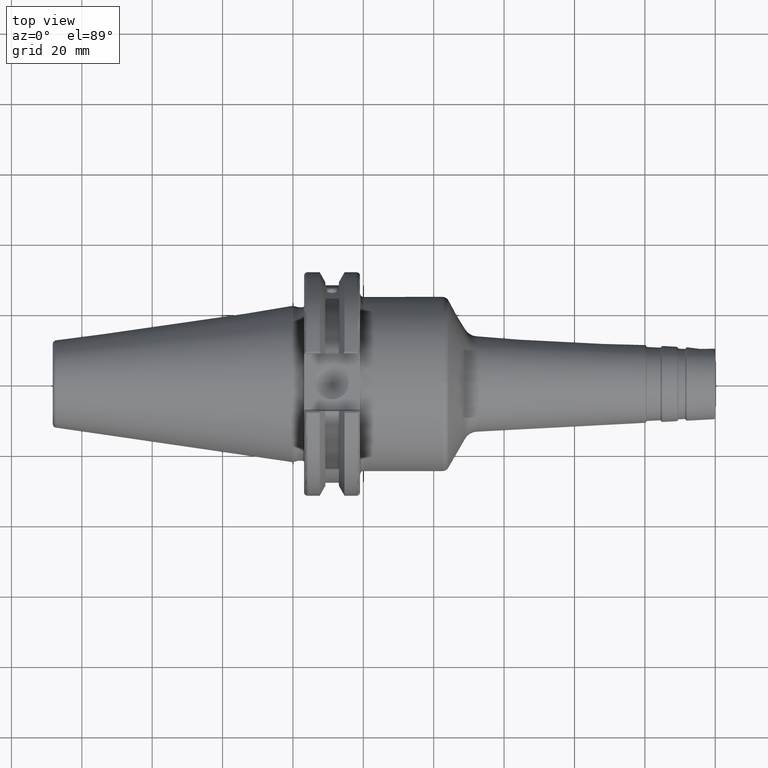
[diagram: clean part render]
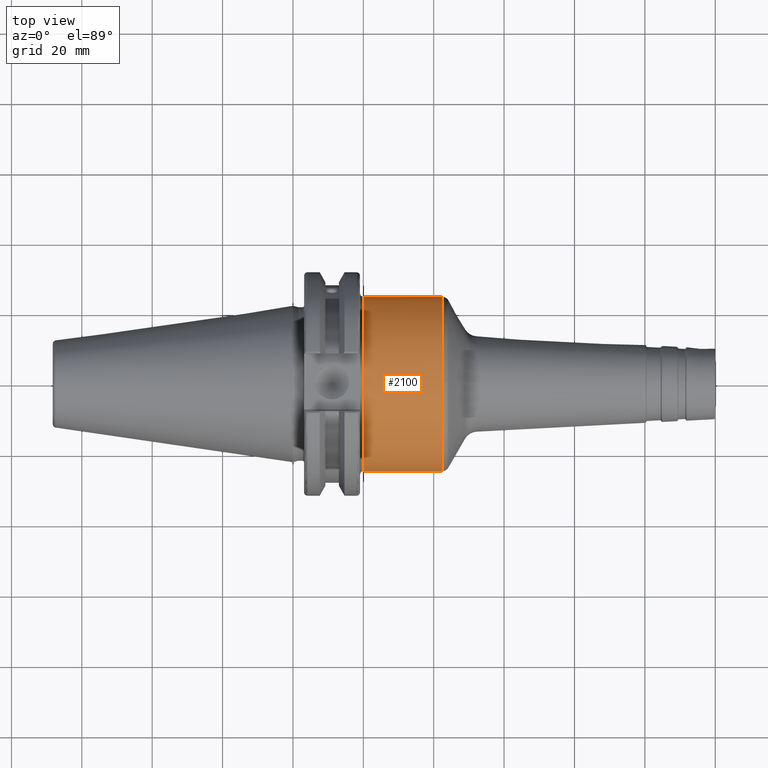
[diagram: same view with one face highlighted and labeled with its STEP entity id]
A machine part, top view. The second image highlights one B-rep face of the part: STEP entity #2100.
In plain terms, the highlighted cylindrical surface (bore or boss wall) has radius 24.75 mm, axis along (1, 0, 0).
Its self-contained STEP definition (entity closure, byte-faithful):
#122=B_SPLINE_CURVE_WITH_KNOTS('',3,(#3341,#3342,#3343,#3344,#3345,#3346,
#3347,#3348,#3349,#3350,#3351,#3352,#3353,#3354,#3355,#3356,#3357,#3358),
 .UNSPECIFIED.,.F.,.F.,(4,2,2,2,2,2,2,2,4),(-2.48845986202559,-2.17733241913027,
-1.86620497623495,-1.55521745362387,-1.24422993101279,-0.933242408401712,
-0.622254885790633,-0.311127442895316,0.),.UNSPECIFIED.);
#156=CYLINDRICAL_SURFACE('',#2239,24.75);
#189=FACE_OUTER_BOUND('',#299,.T.);
#299=EDGE_LOOP('',(#1416,#1417,#1418,#1419,#1420,#1421,#1422,#1423));
#421=LINE('',#3371,#522);
#522=VECTOR('',#2573,24.75);
#627=CIRCLE('',#2240,24.75);
#628=CIRCLE('',#2241,24.75);
#629=CIRCLE('',#2242,24.75);
#630=CIRCLE('',#2243,24.75);
#631=CIRCLE('',#2244,24.75);
#806=VERTEX_POINT('',#3339);
#807=VERTEX_POINT('',#3340);
#810=VERTEX_POINT('',#3365);
#811=VERTEX_POINT('',#3366);
#812=VERTEX_POINT('',#3368);
#813=VERTEX_POINT('',#3370);
#1055=EDGE_CURVE('',#806,#807,#122,.T.);
#1059=EDGE_CURVE('',#810,#811,#627,.T.);
#1060=EDGE_CURVE('',#812,#810,#628,.T.);
#1061=EDGE_CURVE('',#812,#813,#421,.T.);
#1062=EDGE_CURVE('',#806,#813,#629,.T.);
#1063=EDGE_CURVE('',#813,#807,#630,.T.);
#1064=EDGE_CURVE('',#811,#812,#631,.T.);
#1416=ORIENTED_EDGE('',*,*,#1059,.F.);
#1417=ORIENTED_EDGE('',*,*,#1060,.F.);
#1418=ORIENTED_EDGE('',*,*,#1061,.T.);
#1419=ORIENTED_EDGE('',*,*,#1062,.F.);
#1420=ORIENTED_EDGE('',*,*,#1055,.T.);
#1421=ORIENTED_EDGE('',*,*,#1063,.F.);
#1422=ORIENTED_EDGE('',*,*,#1061,.F.);
#1423=ORIENTED_EDGE('',*,*,#1064,.F.);
#2100=ADVANCED_FACE('',(#189),#156,.T.);
#2239=AXIS2_PLACEMENT_3D('',#3364,#2567,#2568);
#2240=AXIS2_PLACEMENT_3D('',#3367,#2569,#2570);
#2241=AXIS2_PLACEMENT_3D('',#3369,#2571,#2572);
#2242=AXIS2_PLACEMENT_3D('',#3372,#2574,#2575);
#2243=AXIS2_PLACEMENT_3D('',#3373,#2576,#2577);
#2244=AXIS2_PLACEMENT_3D('',#3374,#2578,#2579);
#2567=DIRECTION('center_axis',(1.,0.,0.));
#2568=DIRECTION('ref_axis',(0.,1.,0.));
#2569=DIRECTION('center_axis',(1.,0.,0.));
#2570=DIRECTION('ref_axis',(0.,-1.,1.83697019872103E-16));
#2571=DIRECTION('center_axis',(1.,0.,0.));
#2572=DIRECTION('ref_axis',(0.,-1.,1.83697019872103E-16));
#2573=DIRECTION('',(-1.,0.,0.));
#2574=DIRECTION('center_axis',(-1.,0.,0.));
#2575=DIRECTION('ref_axis',(0.,6.12323399573677E-17,1.));
#2576=DIRECTION('center_axis',(-1.,0.,0.));
#2577=DIRECTION('ref_axis',(0.,6.12323399573677E-17,1.));
#2578=DIRECTION('center_axis',(1.,0.,0.));
#2579=DIRECTION('ref_axis',(0.,-1.,1.83697019872103E-16));
#3339=CARTESIAN_POINT('',(20.05,-8.19,-23.3556502799644));
#3340=CARTESIAN_POINT('',(20.05,8.18999999999999,-23.3556502799644));
#3341=CARTESIAN_POINT('Ctrl Pts',(20.05,-8.19,-23.3556502799644));
#3342=CARTESIAN_POINT('Ctrl Pts',(21.0870914763177,-8.19,-23.3556502799644));
#3343=CARTESIAN_POINT('Ctrl Pts',(22.1874172494719,-7.98112852617488,-23.4319820145953));
#3344=CARTESIAN_POINT('Ctrl Pts',(24.2026226557734,-7.14301766428651,-23.7009173446597));
#3345=CARTESIAN_POINT('Ctrl Pts',(25.1182638848105,-6.51414519102515,-23.8889373554493));
#3346=CARTESIAN_POINT('Ctrl Pts',(26.563820070037,-5.06858900579863,-24.2368381566145));
#3347=CARTESIAN_POINT('Ctrl Pts',(27.1929429534371,-4.15281808103606,-24.420258379043));
#3348=CARTESIAN_POINT('Ctrl Pts',(28.0312404144778,-2.13713243178097,-24.6784841969774));
#3349=CARTESIAN_POINT('Ctrl Pts',(28.24,-1.03662507537027,-24.75));
#3350=CARTESIAN_POINT('Ctrl Pts',(28.24,1.03662507537027,-24.75));
#3351=CARTESIAN_POINT('Ctrl Pts',(28.0312404144778,2.13713243178098,-24.6784841969774));
#3352=CARTESIAN_POINT('Ctrl Pts',(27.1929429534371,4.15281808103607,-24.420258379043));
#3353=CARTESIAN_POINT('Ctrl Pts',(26.563820070037,5.06858900579863,-24.2368381566145));
#3354=CARTESIAN_POINT('Ctrl Pts',(25.1182638848105,6.51414519102515,-23.8889373554493));
#3355=CARTESIAN_POINT('Ctrl Pts',(24.2026226557734,7.14301766428652,-23.7009173446597));
#3356=CARTESIAN_POINT('Ctrl Pts',(22.1874172494719,7.98112852617489,-23.4319820145953));
#3357=CARTESIAN_POINT('Ctrl Pts',(21.0870914763177,8.19,-23.3556502799644));
#3358=CARTESIAN_POINT('Ctrl Pts',(20.05,8.19,-23.3556502799644));
#3364=CARTESIAN_POINT('Origin',(31.3260593564108,0.,0.));
#3365=CARTESIAN_POINT('',(42.4474181744424,24.75,-1.51550041394485E-15));
#3366=CARTESIAN_POINT('',(42.4474181744424,-3.0310008278897E-15,24.75));
#3367=CARTESIAN_POINT('Origin',(42.4474181744424,0.,0.));
#3368=CARTESIAN_POINT('',(42.4474181744424,-24.75,-3.0310008278897E-15));
#3369=CARTESIAN_POINT('Origin',(42.4474181744424,0.,0.));
#3370=CARTESIAN_POINT('',(20.05,-24.75,-3.0310008278897E-15));
#3371=CARTESIAN_POINT('',(31.3260593564108,-24.75,-3.0310008278897E-15));
#3372=CARTESIAN_POINT('Origin',(20.05,0.,0.));
#3373=CARTESIAN_POINT('Origin',(20.05,0.,0.));
#3374=CARTESIAN_POINT('Origin',(42.4474181744424,0.,0.));